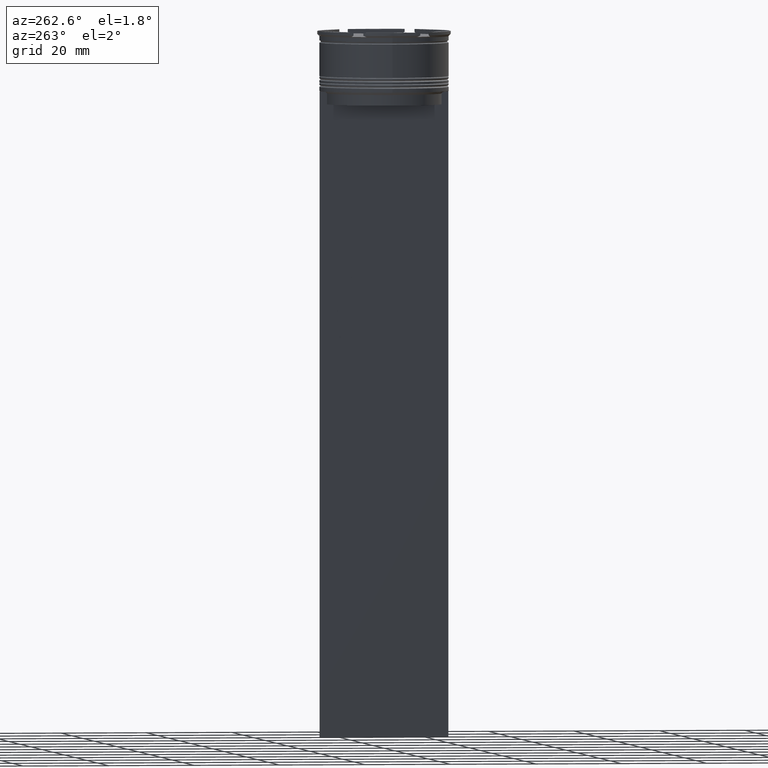
[diagram: clean part render]
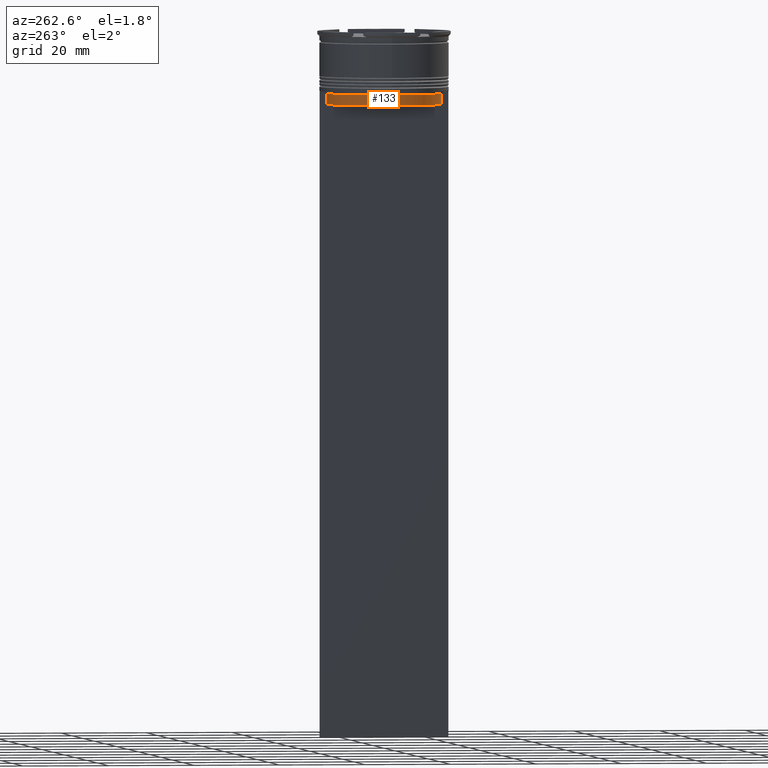
[diagram: same view with one face highlighted and labeled with its STEP entity id]
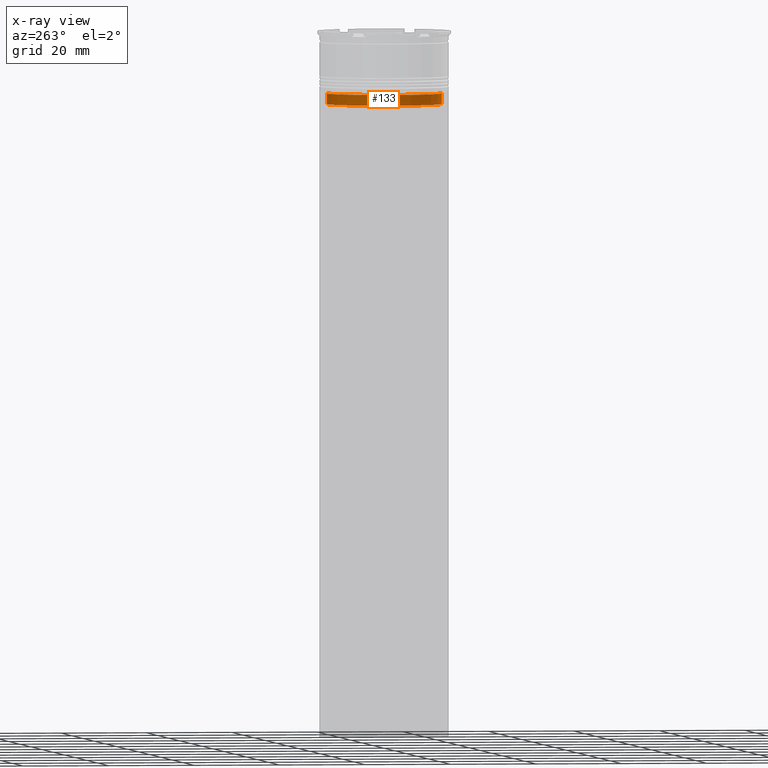
[diagram: x-ray of the same camera — body ghosted, the highlighted face saturated]
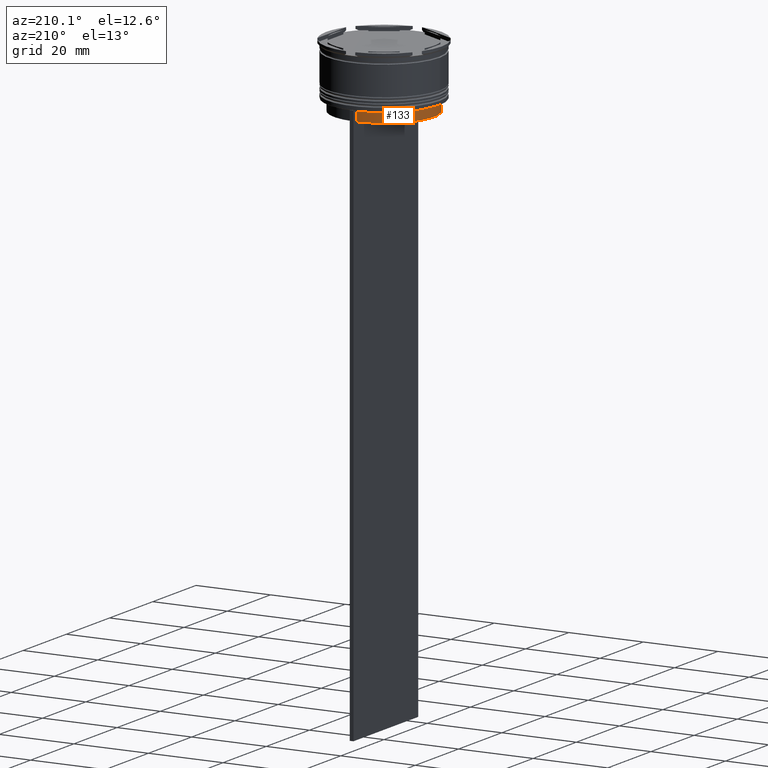
[diagram: same view with one face highlighted and labeled with its STEP entity id]
A machine part, auxiliary view. The second image highlights one B-rep face of the part: STEP entity #133.
The next image is the same camera in x-ray: the body ghosted, the highlighted face saturated — about 0% of this face is hidden behind the body in this view.
A second angle (auxiliary view) of the same face is appended — the face is thin or edge-on in the first view.
In plain terms, the highlighted cylindrical surface (partial cylindrical patch) has radius 13.4 mm, axis along (-0, -0, 1).
Its self-contained STEP definition (entity closure, byte-faithful):
#22 = CARTESIAN_POINT ( 'NONE',  ( 0.000000000000000000, 0.000000000000000000, -17.00000000000000000 ) ) ;
#37 = CARTESIAN_POINT ( 'NONE',  ( 0.000000000000000000, 0.000000000000000000, 0.000000000000000000 ) ) ;
#59 = CIRCLE ( 'NONE', #1079, 13.40000000000000746 ) ;
#133 = ADVANCED_FACE ( 'NONE', ( #2742 ), #2487, .T. ) ;
#223 = DIRECTION ( 'NONE',  ( 1.000000000000000000, 0.000000000000000000, 0.000000000000000000 ) ) ;
#247 = AXIS2_PLACEMENT_3D ( 'NONE', #22, #2848, #223 ) ;
#337 = CARTESIAN_POINT ( 'NONE',  ( -0.4999999999999998890, -13.39066839257847263, 0.000000000000000000 ) ) ;
#345 = CARTESIAN_POINT ( 'NONE',  ( -0.4999999999999998890, 13.39066839257847263, -14.49999999999999822 ) ) ;
#348 = EDGE_CURVE ( 'NONE', #668, #695, #1474, .T. ) ;
#534 = CARTESIAN_POINT ( 'NONE',  ( -0.4999999999999998890, 13.39066839257847263, 0.000000000000000000 ) ) ;
#583 = EDGE_LOOP ( 'NONE', ( #2802, #1514, #1960, #1108 ) ) ;
#585 = CARTESIAN_POINT ( 'NONE',  ( -0.4999999999999998890, -13.39066839257847086, -17.00000000000000000 ) ) ;
#668 = VERTEX_POINT ( 'NONE', #585 ) ;
#695 = VERTEX_POINT ( 'NONE', #1232 ) ;
#750 = DIRECTION ( 'NONE',  ( 0.000000000000000000, 0.000000000000000000, -1.000000000000000000 ) ) ;
#761 = LINE ( 'NONE', #534, #1820 ) ;
#1079 = AXIS2_PLACEMENT_3D ( 'NONE', #1434, #2048, #2533 ) ;
#1108 = ORIENTED_EDGE ( 'NONE', *, *, #1117, .T. ) ;
#1117 = EDGE_CURVE ( 'NONE', #2829, #2013, #761, .T. ) ;
#1226 = DIRECTION ( 'NONE',  ( -0.000000000000000000, -0.000000000000000000, 1.000000000000000000 ) ) ;
#1232 = CARTESIAN_POINT ( 'NONE',  ( -0.4999999999999998890, -13.39066839257847263, -14.49999999999999822 ) ) ;
#1393 = DIRECTION ( 'NONE',  ( -0.000000000000000000, -0.000000000000000000, 1.000000000000000000 ) ) ;
#1434 = CARTESIAN_POINT ( 'NONE',  ( 0.000000000000000000, 0.000000000000000000, -14.49999999999999822 ) ) ;
#1474 = LINE ( 'NONE', #337, #1485 ) ;
#1485 = VECTOR ( 'NONE', #1226, 1000.000000000000000 ) ;
#1514 = ORIENTED_EDGE ( 'NONE', *, *, #348, .T. ) ;
#1820 = VECTOR ( 'NONE', #750, 1000.000000000000000 ) ;
#1960 = ORIENTED_EDGE ( 'NONE', *, *, #2416, .F. ) ;
#2013 = VERTEX_POINT ( 'NONE', #2730 ) ;
#2048 = DIRECTION ( 'NONE',  ( -0.000000000000000000, -0.000000000000000000, 1.000000000000000000 ) ) ;
#2194 = CIRCLE ( 'NONE', #247, 13.40000000000000391 ) ;
#2271 = AXIS2_PLACEMENT_3D ( 'NONE', #37, #1393, #2499 ) ;
#2416 = EDGE_CURVE ( 'NONE', #2829, #695, #59, .T. ) ;
#2487 = CYLINDRICAL_SURFACE ( 'NONE', #2271, 13.40000000000000568 ) ;
#2499 = DIRECTION ( 'NONE',  ( 1.000000000000000000, 0.000000000000000000, 0.000000000000000000 ) ) ;
#2533 = DIRECTION ( 'NONE',  ( 1.000000000000000000, 0.000000000000000000, 0.000000000000000000 ) ) ;
#2730 = CARTESIAN_POINT ( 'NONE',  ( -0.4999999999999998890, 13.39066839257847086, -17.00000000000000000 ) ) ;
#2742 = FACE_OUTER_BOUND ( 'NONE', #583, .T. ) ;
#2757 = EDGE_CURVE ( 'NONE', #2013, #668, #2194, .T. ) ;
#2802 = ORIENTED_EDGE ( 'NONE', *, *, #2757, .T. ) ;
#2829 = VERTEX_POINT ( 'NONE', #345 ) ;
#2848 = DIRECTION ( 'NONE',  ( -0.000000000000000000, -0.000000000000000000, 1.000000000000000000 ) ) ;